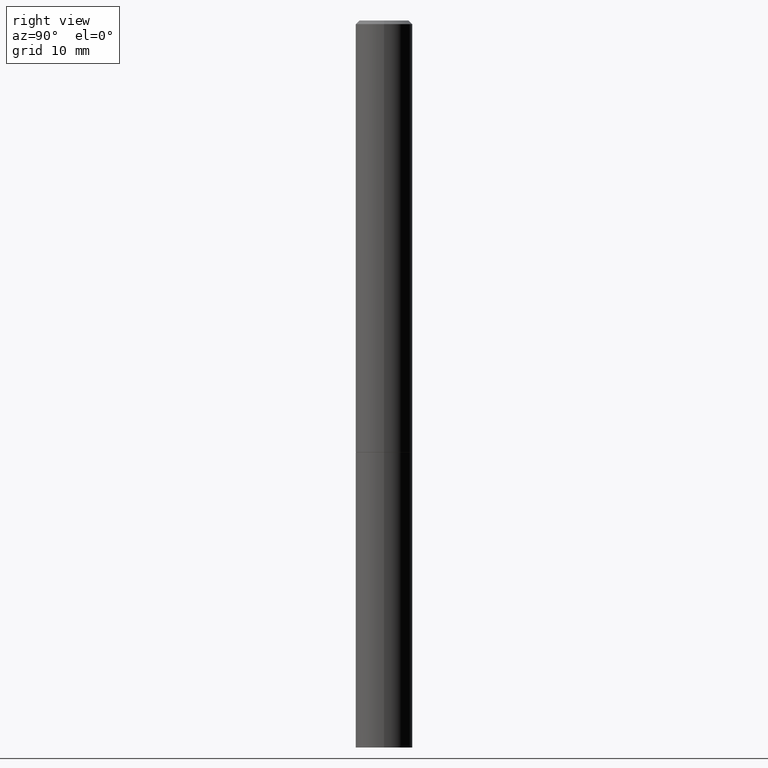
[diagram: clean part render]
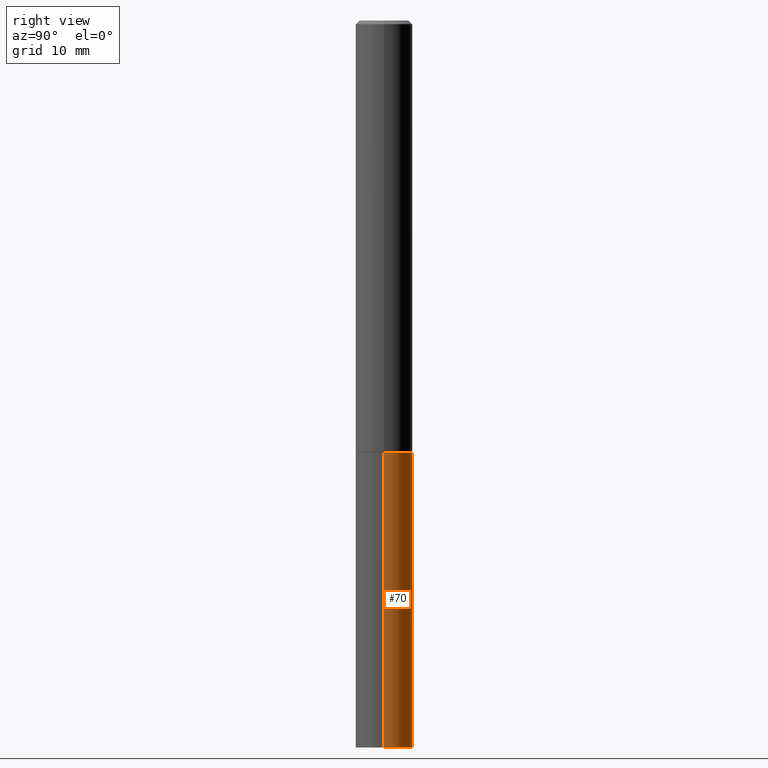
[diagram: same view with one face highlighted and labeled with its STEP entity id]
A machine part, right view. The second image highlights one B-rep face of the part: STEP entity #70.
In plain terms, the highlighted cylindrical surface (edge-blend (fillet) strip) has radius 3.9688 mm, axis along (-0, 0, 1).
Its self-contained STEP definition (entity closure, byte-faithful):
#17 = DIRECTION ( 'NONE',  ( -2.445468806185136877E-29, 3.491481338843145188E-15, 1.000000000000000000 ) ) ;
#35 = CARTESIAN_POINT ( 'NONE',  ( 0.1562500000000000000, -1.091087918388479174E-15, 7.619026212181150377E-30 ) ) ;
#58 = CARTESIAN_POINT ( 'NONE',  ( -0.1562500000000000000, -1.001887374293736968E-14, -2.375000000000000000 ) ) ;
#63 = CARTESIAN_POINT ( 'NONE',  ( 0.1562500000000000000, -1.505701327376106229E-14, -4.000000000000000000 ) ) ;
#70 = ADVANCED_FACE ( 'NONE', ( #232 ), #350, .T. ) ;
#87 = DIRECTION ( 'NONE',  ( -2.445468806185136877E-29, 3.491481338843145188E-15, 1.000000000000000000 ) ) ;
#94 = LINE ( 'NONE', #328, #158 ) ;
#101 = ORIENTED_EDGE ( 'NONE', *, *, #344, .F. ) ;
#110 = DIRECTION ( 'NONE',  ( -2.445468806185136597E-29, 3.491481338843145583E-15, 1.000000000000000000 ) ) ;
#134 = AXIS2_PLACEMENT_3D ( 'NONE', #247, #110, #143 ) ;
#135 = DIRECTION ( 'NONE',  ( 1.000000000000000000, -6.982962677686262766E-15, 0.000000000000000000 ) ) ;
#141 = CARTESIAN_POINT ( 'NONE',  ( 0.000000000000000000, 0.000000000000000000, 0.000000000000000000 ) ) ;
#143 = DIRECTION ( 'NONE',  ( 1.000000000000000000, -6.982962677686262766E-15, 0.000000000000000000 ) ) ;
#158 = VECTOR ( 'NONE', #17, 39.37007874015748143 ) ;
#164 = ORIENTED_EDGE ( 'NONE', *, *, #207, .F. ) ;
#166 = ORIENTED_EDGE ( 'NONE', *, *, #358, .T. ) ;
#172 = CIRCLE ( 'NONE', #257, 0.1562500000000000000 ) ;
#183 = CARTESIAN_POINT ( 'NONE',  ( -0.1562500000000000000, -1.001887374293736968E-14, -4.000000000000000000 ) ) ;
#190 = CARTESIAN_POINT ( 'NONE',  ( 9.781875224740546387E-29, -1.396592535537258233E-14, -4.000000000000000000 ) ) ;
#202 = LINE ( 'NONE', #35, #254 ) ;
#205 = DIRECTION ( 'NONE',  ( 1.000000000000000000, -6.982962677686266711E-15, 4.876176775795936353E-29 ) ) ;
#207 = EDGE_CURVE ( 'NONE', #299, #363, #202, .T. ) ;
#214 = VERTEX_POINT ( 'NONE', #58 ) ;
#232 = FACE_OUTER_BOUND ( 'NONE', #303, .T. ) ;
#233 = DIRECTION ( 'NONE',  ( -2.445468806185136597E-29, 3.491481338843145583E-15, 1.000000000000000000 ) ) ;
#247 = CARTESIAN_POINT ( 'NONE',  ( 5.807988414689699417E-29, -8.292268179752470118E-15, -2.375000000000000000 ) ) ;
#254 = VECTOR ( 'NONE', #87, 39.37007874015748143 ) ;
#257 = AXIS2_PLACEMENT_3D ( 'NONE', #190, #308, #135 ) ;
#272 = AXIS2_PLACEMENT_3D ( 'NONE', #141, #233, #205 ) ;
#284 = CIRCLE ( 'NONE', #134, 0.1562500000000000000 ) ;
#292 = EDGE_CURVE ( 'NONE', #307, #214, #94, .T. ) ;
#299 = VERTEX_POINT ( 'NONE', #63 ) ;
#303 = EDGE_LOOP ( 'NONE', ( #166, #361, #101, #164 ) ) ;
#307 = VERTEX_POINT ( 'NONE', #183 ) ;
#308 = DIRECTION ( 'NONE',  ( -2.445468806185136597E-29, 3.491481338843145583E-15, 1.000000000000000000 ) ) ;
#328 = CARTESIAN_POINT ( 'NONE',  ( -0.1562500000000000000, 1.110223024625156540E-15, -7.685836078523291160E-30 ) ) ;
#344 = EDGE_CURVE ( 'NONE', #363, #214, #284, .T. ) ;
#350 = CYLINDRICAL_SURFACE ( 'NONE', #272, 0.1562500000000000000 ) ;
#358 = EDGE_CURVE ( 'NONE', #299, #307, #172, .T. ) ;
#361 = ORIENTED_EDGE ( 'NONE', *, *, #292, .T. ) ;
#363 = VERTEX_POINT ( 'NONE', #366 ) ;
#366 = CARTESIAN_POINT ( 'NONE',  ( 0.1562500000000000000, -9.383356098140948502E-15, -2.375000000000000000 ) ) ;